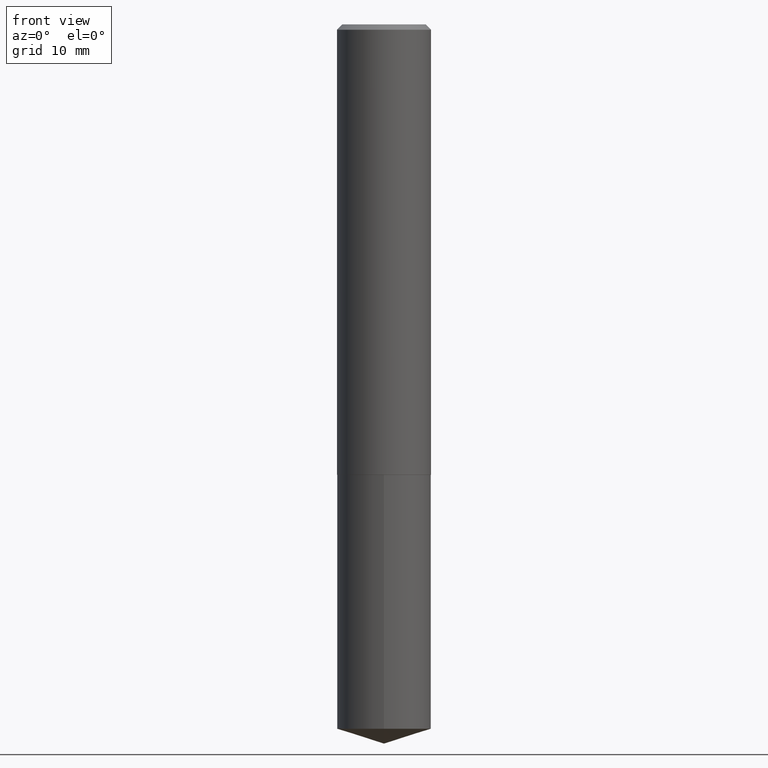
[diagram: clean part render]
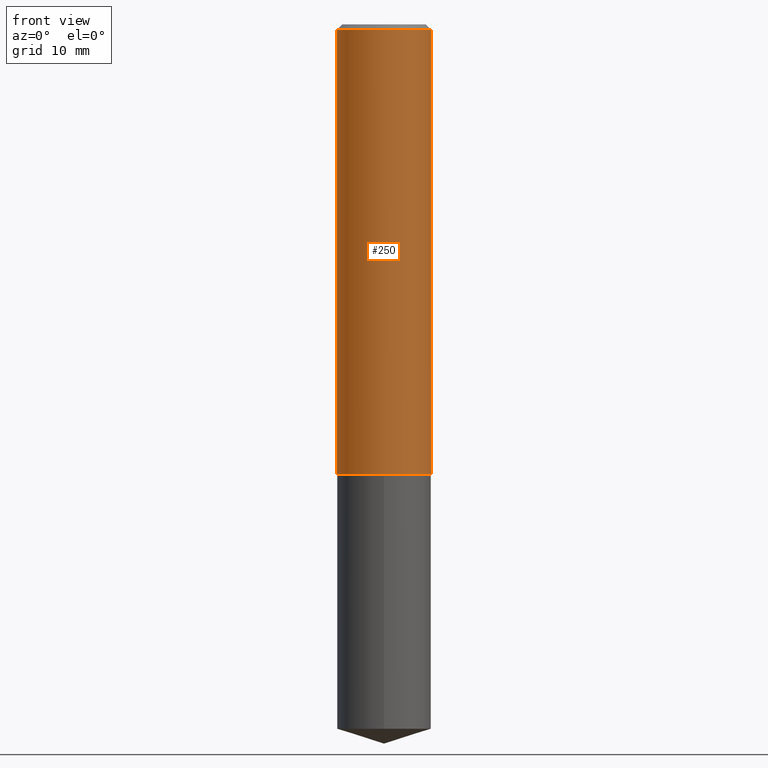
[diagram: same view with one face highlighted and labeled with its STEP entity id]
A machine part, front view. The second image highlights one B-rep face of the part: STEP entity #250.
In plain terms, the highlighted cylindrical surface (partial cylindrical patch) has radius 7.0002 mm, axis along (-0, 0, 1).
Its self-contained STEP definition (entity closure, byte-faithful):
#3 = CARTESIAN_POINT ( 'NONE',  ( 0.2756000000000000116, -2.033613305809184449E-15, -0.03125000000000021511 ) ) ;
#8 = DIRECTION ( 'NONE',  ( 1.000000000000000000, -6.982962677686267499E-15, 4.876176775795935793E-29 ) ) ;
#13 = DIRECTION ( 'NONE',  ( 1.000000000000000000, -6.982962677686264344E-15, 0.000000000000000000 ) ) ;
#17 = AXIS2_PLACEMENT_3D ( 'NONE', #228, #173, #230 ) ;
#28 = AXIS2_PLACEMENT_3D ( 'NONE', #165, #33, #8 ) ;
#33 = DIRECTION ( 'NONE',  ( -2.445468806185136597E-29, 3.491481338843145583E-15, 1.000000000000000000 ) ) ;
#39 = CARTESIAN_POINT ( 'NONE',  ( 0.2756000000000001782, -1.924504513970336532E-15, 1.343874319409360828E-29 ) ) ;
#61 = VERTEX_POINT ( 'NONE', #3 ) ;
#69 = FACE_OUTER_BOUND ( 'NONE', #300, .T. ) ;
#74 = CARTESIAN_POINT ( 'NONE',  ( 6.449434882552060429E-29, -9.208083734931026389E-15, -2.637299999999999756 ) ) ;
#84 = CIRCLE ( 'NONE', #147, 0.2756000000000003447 ) ;
#85 = CARTESIAN_POINT ( 'NONE',  ( 0.2756000000000003447, -1.113258824890136292E-14, -2.637299999999999756 ) ) ;
#95 = VECTOR ( 'NONE', #220, 39.37007874015748143 ) ;
#132 = ORIENTED_EDGE ( 'NONE', *, *, #390, .T. ) ;
#134 = ORIENTED_EDGE ( 'NONE', *, *, #232, .F. ) ;
#146 = VECTOR ( 'NONE', #343, 39.37007874015748143 ) ;
#147 = AXIS2_PLACEMENT_3D ( 'NONE', #74, #351, #13 ) ;
#155 = CARTESIAN_POINT ( 'NONE',  ( -0.2756000000000001782, 1.958255779754837378E-15, -1.355658510874252848E-29 ) ) ;
#163 = LINE ( 'NONE', #155, #146 ) ;
#165 = CARTESIAN_POINT ( 'NONE',  ( 0.000000000000000000, 0.000000000000000000, 0.000000000000000000 ) ) ;
#173 = DIRECTION ( 'NONE',  ( -2.445468806185136597E-29, 3.491481338843145583E-15, 1.000000000000000000 ) ) ;
#181 = CIRCLE ( 'NONE', #17, 0.2756000000000000116 ) ;
#191 = CYLINDRICAL_SURFACE ( 'NONE', #28, 0.2756000000000001782 ) ;
#204 = CARTESIAN_POINT ( 'NONE',  ( -0.2756000000000003447, -7.249827955176188222E-15, -2.637299999999999756 ) ) ;
#207 = EDGE_CURVE ( 'NONE', #341, #61, #305, .T. ) ;
#220 = DIRECTION ( 'NONE',  ( -2.445468806185136877E-29, 3.491481338843145188E-15, 1.000000000000000000 ) ) ;
#228 = CARTESIAN_POINT ( 'NONE',  ( 7.642090019328604414E-31, -1.091087918388490513E-16, -0.03125000000000021511 ) ) ;
#230 = DIRECTION ( 'NONE',  ( 1.000000000000000000, -6.982962677686267499E-15, 0.000000000000000000 ) ) ;
#232 = EDGE_CURVE ( 'NONE', #303, #258, #163, .T. ) ;
#250 = ADVANCED_FACE ( 'NONE', ( #69 ), #191, .T. ) ;
#258 = VERTEX_POINT ( 'NONE', #368 ) ;
#300 = EDGE_LOOP ( 'NONE', ( #134, #132, #315, #358 ) ) ;
#303 = VERTEX_POINT ( 'NONE', #204 ) ;
#305 = LINE ( 'NONE', #39, #95 ) ;
#315 = ORIENTED_EDGE ( 'NONE', *, *, #207, .T. ) ;
#341 = VERTEX_POINT ( 'NONE', #85 ) ;
#342 = EDGE_CURVE ( 'NONE', #258, #61, #181, .T. ) ;
#343 = DIRECTION ( 'NONE',  ( -2.445468806185136877E-29, 3.491481338843145188E-15, 1.000000000000000000 ) ) ;
#351 = DIRECTION ( 'NONE',  ( -2.445468806185136597E-29, 3.491481338843145583E-15, 1.000000000000000000 ) ) ;
#358 = ORIENTED_EDGE ( 'NONE', *, *, #342, .F. ) ;
#368 = CARTESIAN_POINT ( 'NONE',  ( -0.2756000000000000116, -2.700340483630098789E-15, -0.03125000000000021511 ) ) ;
#390 = EDGE_CURVE ( 'NONE', #303, #341, #84, .T. ) ;